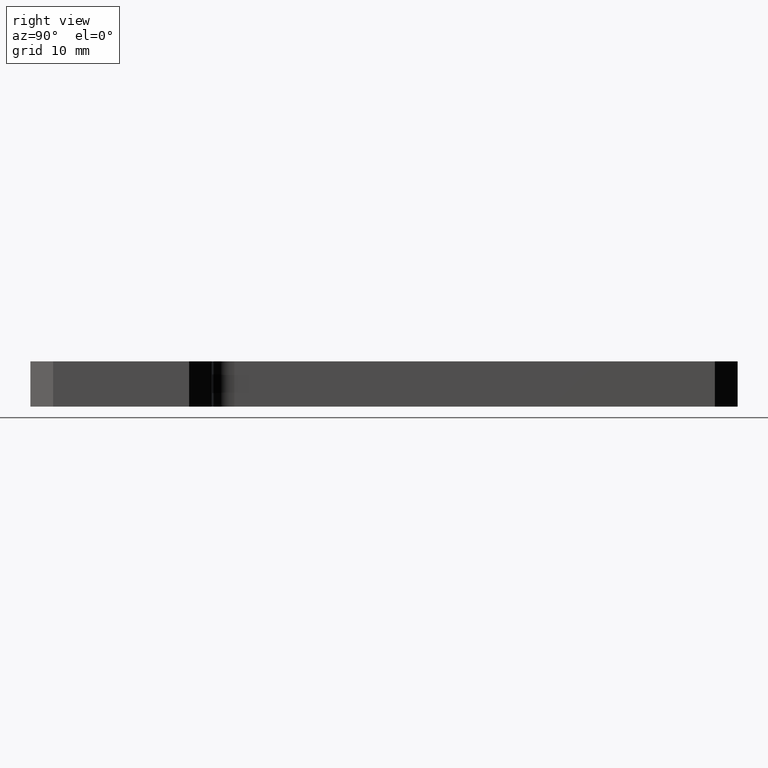
[diagram: clean part render]
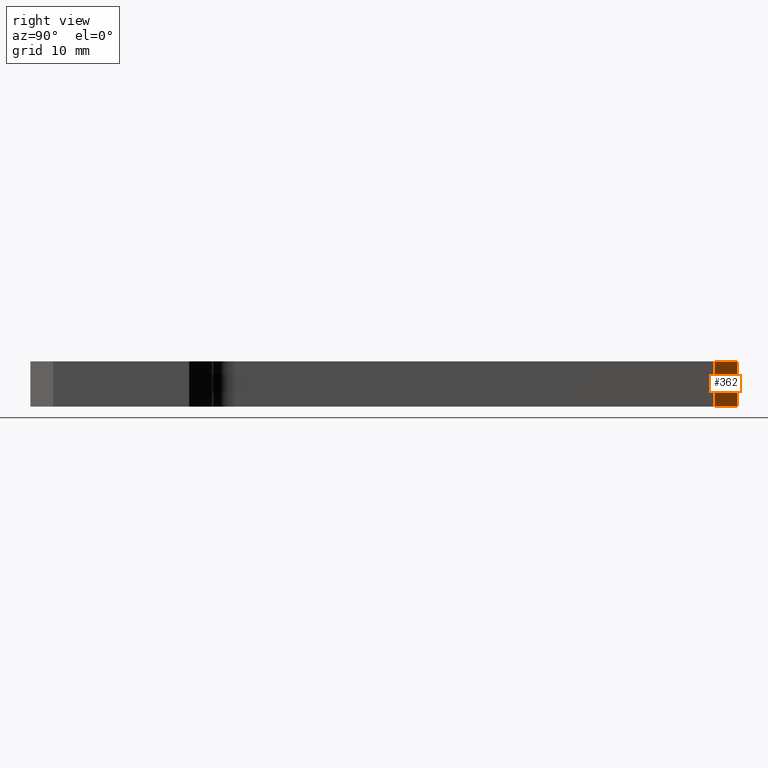
[diagram: same view with one face highlighted and labeled with its STEP entity id]
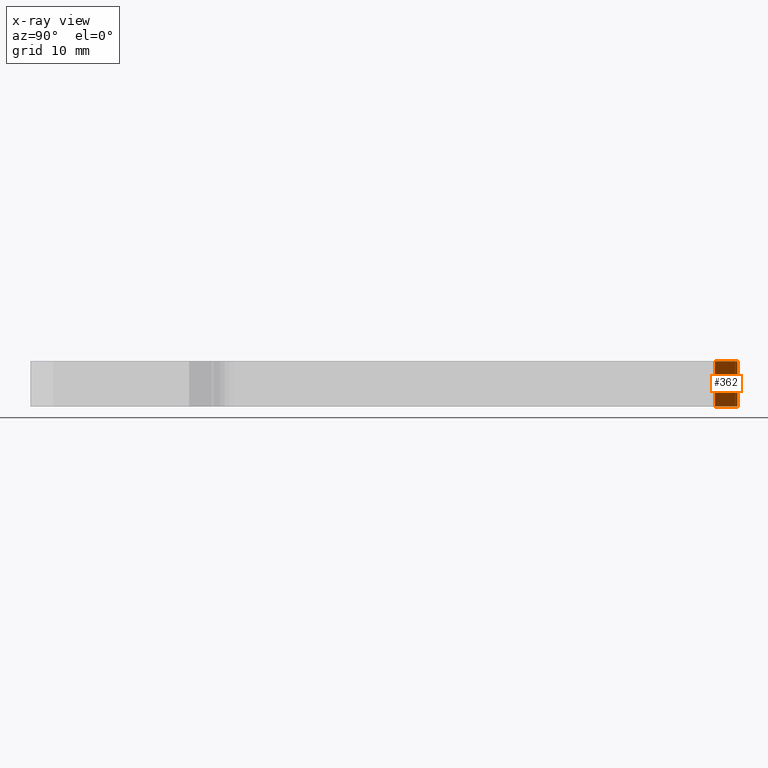
[diagram: x-ray of the same camera — body ghosted, the highlighted face saturated]
A machine part, right view. The second image highlights one B-rep face of the part: STEP entity #362.
The next image is the same camera in x-ray: the body ghosted, the highlighted face saturated — about 0% of this face is hidden behind the body in this view.
In plain terms, the highlighted planar face has unit normal (-0.7071, -0.7071, 0).
Its self-contained STEP definition (entity closure, byte-faithful):
#2 = LINE ( 'NONE', #172, #5 ) ;
#5 = VECTOR ( 'NONE', #167, 39.37007874015748900 ) ;
#53 = LINE ( 'NONE', #235, #56 ) ;
#56 = VECTOR ( 'NONE', #237, 39.37007874015748100 ) ;
#65 = LINE ( 'NONE', #247, #68 ) ;
#68 = VECTOR ( 'NONE', #248, 39.37007874015748100 ) ;
#116 = LINE ( 'NONE', #311, #119 ) ;
#119 = VECTOR ( 'NONE', #312, 39.37007874015748900 ) ;
#167 = DIRECTION ( 'NONE',  ( -0.7071067811865490200, 0.7071067811865459100, -0.0000000000000000000 ) ) ;
#172 = CARTESIAN_POINT ( 'NONE',  ( 0.5999999999999999800, 3.775000000000000400, 0.0000000000000000000 ) ) ;
#235 = CARTESIAN_POINT ( 'NONE',  ( 0.4750000000000000300, 3.899999999999999900, -0.2500000000000000000 ) ) ;
#237 = DIRECTION ( 'NONE',  ( 0.0000000000000000000, 0.0000000000000000000, -1.000000000000000000 ) ) ;
#247 = CARTESIAN_POINT ( 'NONE',  ( 0.5999999999999999800, 3.775000000000000400, -0.2500000000000000000 ) ) ;
#248 = DIRECTION ( 'NONE',  ( 0.0000000000000000000, 0.0000000000000000000, 1.000000000000000000 ) ) ;
#311 = CARTESIAN_POINT ( 'NONE',  ( 2.187499999999999100, 2.187500000000008900, -0.2500000000000000000 ) ) ;
#312 = DIRECTION ( 'NONE',  ( 0.7071067811865490200, -0.7071067811865459100, -0.0000000000000000000 ) ) ;
#362 = ADVANCED_FACE ( 'NONE', ( #813 ), #678, .F. ) ;
#439 = ORIENTED_EDGE ( 'NONE', *, *, #946, .F. ) ;
#440 = ORIENTED_EDGE ( 'NONE', *, *, #911, .F. ) ;
#441 = ORIENTED_EDGE ( 'NONE', *, *, #864, .F. ) ;
#442 = ORIENTED_EDGE ( 'NONE', *, *, #917, .F. ) ;
#485 = EDGE_LOOP ( 'NONE', ( #439, #440, #441, #442 ) ) ;
#575 = VERTEX_POINT ( 'NONE', #717 ) ;
#580 = VERTEX_POINT ( 'NONE', #722 ) ;
#581 = VERTEX_POINT ( 'NONE', #723 ) ;
#586 = VERTEX_POINT ( 'NONE', #728 ) ;
#671 = CARTESIAN_POINT ( 'NONE',  ( 0.5999999999999999800, 3.775000000000000400, -0.2500000000000000000 ) ) ;
#678 = PLANE ( 'NONE',  #951 ) ;
#680 = DIRECTION ( 'NONE',  ( -0.7071067811865460200, -0.7071067811865491300, 0.0000000000000000000 ) ) ;
#681 = DIRECTION ( 'NONE',  ( 0.7071067811865490200, -0.7071067811865459100, 0.0000000000000000000 ) ) ;
#717 = CARTESIAN_POINT ( 'NONE',  ( 0.4750000000000001400, 3.899999999999999900, 0.0000000000000000000 ) ) ;
#722 = CARTESIAN_POINT ( 'NONE',  ( 0.5999999999999999800, 3.775000000000000400, 0.0000000000000000000 ) ) ;
#723 = CARTESIAN_POINT ( 'NONE',  ( 0.4750000000000001400, 3.900000000000000400, -0.2500000000000000000 ) ) ;
#728 = CARTESIAN_POINT ( 'NONE',  ( 0.5999999999999996400, 3.775000000000001700, -0.2500000000000000000 ) ) ;
#813 = FACE_OUTER_BOUND ( 'NONE', #485, .T. ) ;
#864 = EDGE_CURVE ( 'NONE', #580, #575, #2, .T. ) ;
#911 = EDGE_CURVE ( 'NONE', #575, #581, #53, .T. ) ;
#917 = EDGE_CURVE ( 'NONE', #586, #580, #65, .T. ) ;
#946 = EDGE_CURVE ( 'NONE', #581, #586, #116, .T. ) ;
#951 = AXIS2_PLACEMENT_3D ( 'NONE', #671, #680, #681 ) ;